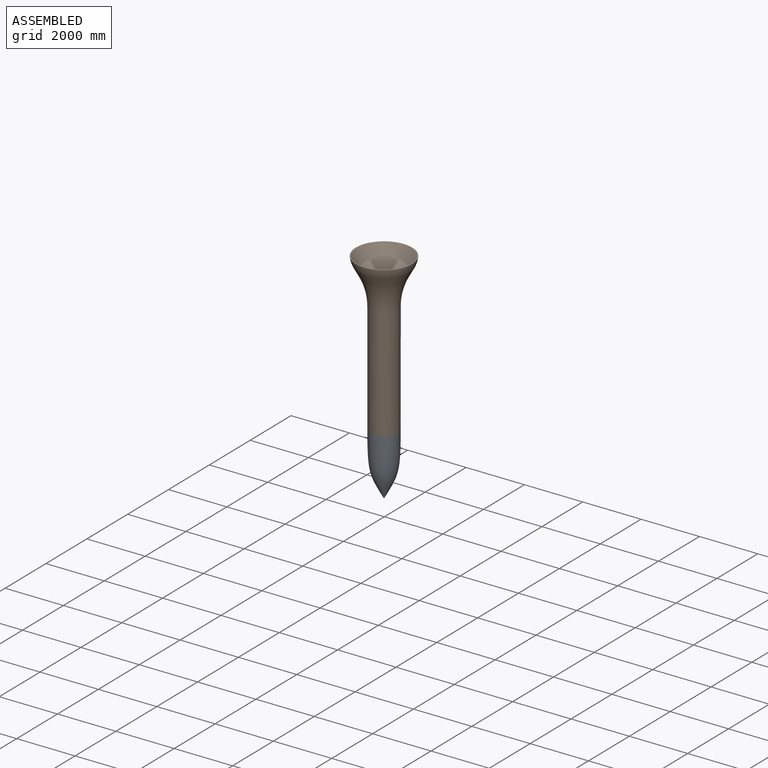
[diagram: assembled view]
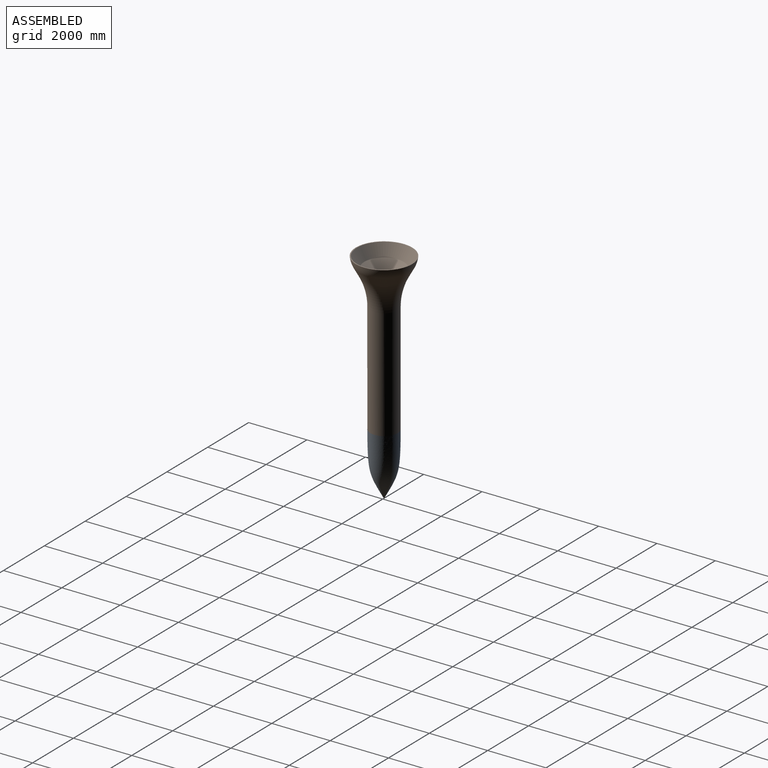
[diagram: assembled view, second angle]
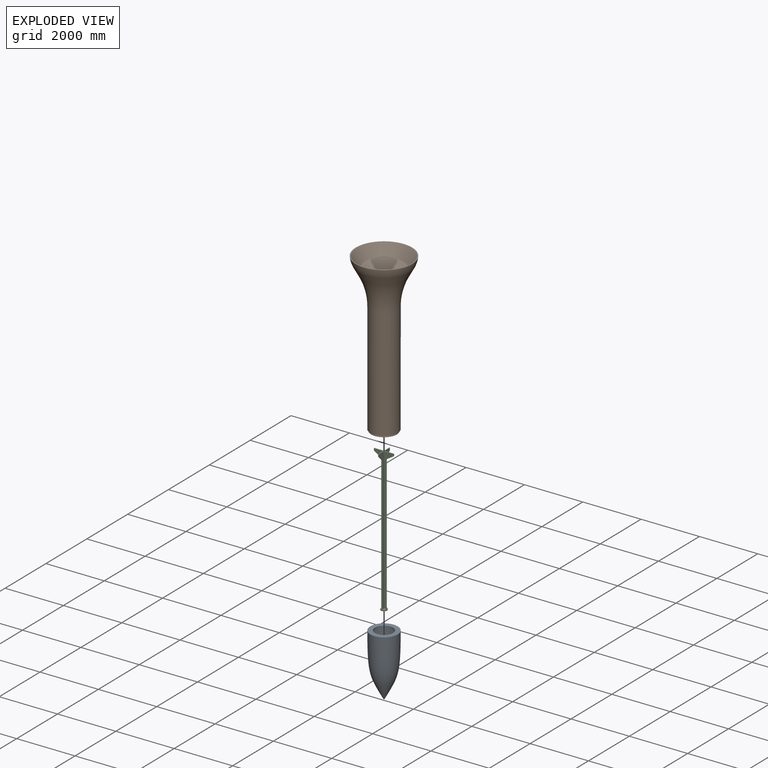
[diagram: exploded view]
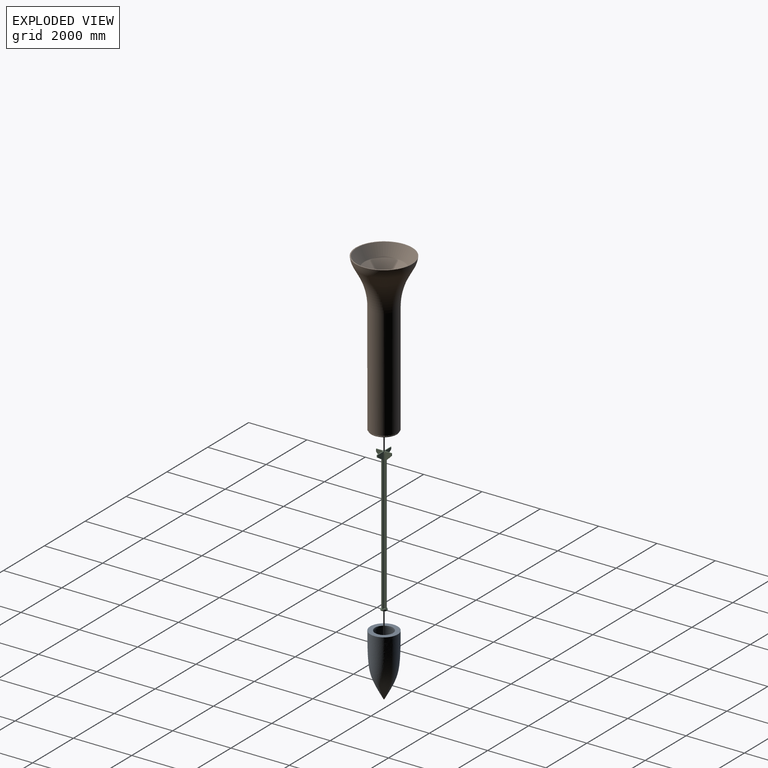
[diagram: exploded view, second angle]
ASSEMBLY  parts=3 mates=2
PART A: 17 faces, bbox 937.6x937.6x2147.9 mm
  f0: cone r=335.39mm half-angle=90deg, axis (0,0,-1), area 246113.3mm2, adj f1,f16
  f1: revolved ~1027.75x873.67mm, area 2758866.9mm2, adj f0,f2
  f2: plane 801.27x801.27mm, normal (0,0,1), area 470275.8mm2, adj f1,f3
  f3: cylinder r=103.99mm len=207.98mm, axis (0,0,-1), area 29760mm2, adj f2,f4
  f4: plane 309.58x309.58mm, normal (0,0,-1), area 41299.8mm2, adj f3,f5
  f5: cylinder r=154.79mm len=309.58mm, axis (0,0,-1), area 98814.2mm2, adj f4,f6
  f6: plane 309.58x309.58mm, normal (0,0,1), area 54272.5mm2, adj f5,f7
  f7: cylinder r=81.76mm len=163.52mm, axis (0,0,-1), area 8801.4mm2, adj f6,f8
  f8: plane 207.98x207.98mm, normal (0,0,-1), area 12972.7mm2, adj f7,f9
  f9: cylinder r=103.99mm len=207.98mm, axis (0,0,-1), area 25430.4mm2, adj f8,f10
  f10: plane 207.98x207.98mm, normal (0,0,1), area 33973.6mm2, adj f9
  f11: cone r=31.79mm half-angle=31.5deg, axis (0,0,1), area 6075.3mm2, adj f12
  f12: revolved ~2096.06x937.56mm, area 4950282.7mm2, adj f11,f13
  f13: cone r=468.78mm half-angle=90deg, axis (0,0,-1), area 388490.6mm2, adj f12,f14
  f14: cylinder r=309.99mm len=619.98mm, axis (0,0,-1), area 98943.6mm2, adj f13,f15
  f15: cone r=309.99mm half-angle=90deg, axis (0,0,-1), area 51498.6mm2, adj f14,f16
  f16: cylinder r=335.39mm len=670.78mm, axis (0,0,-1), area 53525.5mm2, adj f0,f15
PART B: 23 faces, bbox 2590.1x2590.1x5588.7 mm
  f0: cone r=309.99mm half-angle=90deg, axis (0,0,-1), area 388490.6mm2, adj f1,f20
  f1: cylinder r=468.78mm len=3803.4mm, axis (0,0,-1), area 11202602.9mm2, adj f0,f21
  f2: cone r=860.04mm half-angle=28.4deg, axis (0,0,1), area 1246689.6mm2, adj f21,f22
  f3: revolved ~1928.12x1928.12mm, area 1824221.9mm2, adj f4,f22
  f4: cone r=964.06mm half-angle=89.6deg, axis (0,0,-1), area 189395.7mm2, adj f3,f5
  f5: cone r=932.27mm half-angle=35deg, axis (0,0,1), area 2264770.8mm2, adj f4,f6
  f6: cone r=675.19mm half-angle=56deg, axis (0,0,1), area 1707870mm2, adj f5,f7
  f7: cylinder r=72.47mm len=144.94mm, axis (0,0,-1), area 32147.9mm2, adj f6,f8
  f8: cone r=72.47mm half-angle=33.3deg, axis (0,0,-1), area 341223.6mm2, adj f7,f9
  f9: cone r=254.73mm half-angle=3.7deg, axis (0,0,-1), area 2638928.2mm2, adj f8,f10
  f10: cone r=360.79mm half-angle=0.4deg, axis (0,0,-1), area 4685601.7mm2, adj f9,f11
  f11: cone r=360.79mm half-angle=6.1deg, axis (0,0,1), area 1457733.3mm2, adj f10,f12
  f12: cylinder r=284.59mm len=569.18mm, axis (0,0,-1), area 181678.5mm2, adj f11,f13
  f13: plane 721.58x721.58mm, normal (0,0,-1), area 154495.9mm2, adj f12,f14
  f14: cylinder r=360.79mm len=721.58mm, axis (0,0,-1), area 57579.1mm2, adj f13,f15
  f15: plane 873.98x873.98mm, normal (0,0,-1), area 190978.8mm2, adj f14,f16
  f16: cylinder r=436.99mm len=873.98mm, axis (0,0,-1), area 69739.9mm2, adj f15,f17
  f17: cone r=335.39mm half-angle=90deg, axis (0,0,-1), area 246531.1mm2, adj f16,f18
  f18: cylinder r=335.39mm len=670.78mm, axis (0,0,-1), area 53525.3mm2, adj f17,f19
  f19: plane 670.78x670.78mm, normal (0,0,1), area 51503mm2, adj f18,f20
  f20: cylinder r=309.99mm len=619.98mm, axis (0,0,-1), area 98943.6mm2, adj f0,f19
  f21: torus R=2561.41mm, axis (0,0,-1), area 3609780.1mm2, adj f1,f2
  f22: torus R=2682.26mm, axis (0,0,-1), area 303549.8mm2, adj f2,f3
PART C: 46 faces, bbox 678.3x533.4x5022.8 mm
  f0: plane 71.48x71.48mm, normal (0,0,1), area 3699.5mm2, adj f4,f12,f30
  f1: plane 71.48x71.48mm, normal (0,0,1), area 3699.5mm2, adj f12,f21,f28
  f2: plane 71.48x71.48mm, normal (0,0,1), area 3376.9mm2, adj f5,f6,f12,f36,f37
  f3: plane 25.4x0.95mm, normal (0,0,1), area 16.1mm2, adj f12,f41
  f4: plane 4866.78x326.44mm, normal (0,-1,0), area 391846.8mm2, adj f0,f16,f17,f18,f19,f20,f30
  f5: plane 4866.78x326.44mm, normal (0,1,0), area 330556.6mm2, adj f2,f6,f19,f23,f24,f25,f26,f35
  f6: plane 4866.78x254mm, normal (-1,0,0), area 256931mm2, adj f2,f5,f7,f19,f33,f34,f35,f37
  f7: plane 30.12x25.4mm, normal (0,0,-1), area 765mm2, adj f6,f8,f34,f41
  f8: plane 4866.78x254mm, normal (1,0,0), area 256931mm2, adj f7,f9,f19,f22,f33,f34,f38,f40
  f9: plane 71.48x71.48mm, normal (0,0,1), area 3376.9mm2, adj f8,f12,f22,f39,f40
  f10: cylinder r=103.99mm len=207.98mm, axis (0,0,-1), area 25430.4mm2, adj f11,f14
  f11: plane 207.98x207.98mm, normal (0,0,1), area 11203mm2, adj f10,f12
  f12: cylinder r=85.14mm len=170.27mm, axis (0,0,-1), area 9164.7mm2, adj f0,f1,f2,f3,f9,f11,f13,f15
  f13: plane 25.4x0.95mm, normal (0,0,1), area 16.1mm2, adj f12,f42
  f14: plane 207.98x207.98mm, normal (0,0,-1), area 33973.6mm2, adj f10
  f15: plane 12.7x0.95mm, normal (0,0,-1), area 4mm2, adj f12,f16,f22
  f16: plane 4629.92x25.4mm, normal (1,0,0), area 117599.9mm2, adj f4,f15,f17,f20,f22
  f17: plane 254x164.14mm, normal (0.54,0,-0.84), area 7681.4mm2, adj f4,f16,f18,f22
  f18: plane 72.73x25.4mm, normal (1,0,0), area 1847.3mm2, adj f4,f17,f19,f22
  f19: plane 678.27x533.4mm, normal (0,0,1), area 29624.6mm2, adj f4,f5,f6,f8,f18,f21,f22,f26
  f20: plane 12.7x0.95mm, normal (0,0,-1), area 4mm2, adj f4,f12,f16
  f21: plane 4866.78x326.44mm, normal (0,-1,0), area 391846.8mm2, adj f1,f19,f24,f25,f26,f27,f28
  f22: plane 4866.78x326.44mm, normal (0,1,0), area 330556.6mm2, adj f8,f9,f15,f16,f17,f18,f19,f38
  f23: plane 12.7x0.95mm, normal (0,0,-1), area 4mm2, adj f5,f12,f24
  f24: plane 4629.92x25.4mm, normal (-1,0,0), area 117599.9mm2, adj f5,f21,f23,f25,f27
  f25: plane 254x164.14mm, normal (-0.54,0,-0.84), area 7681.4mm2, adj f5,f21,f24,f26
  f26: plane 72.73x25.4mm, normal (-1,0,0), area 1847.3mm2, adj f5,f19,f21,f25
  f27: plane 12.7x0.95mm, normal (0,0,-1), area 4mm2, adj f12,f21,f24
  f28: plane 4866.78x254mm, normal (-1,0,0), area 379511.4mm2, adj f1,f19,f21,f29,f31,f32,f42
  f29: plane 30.12x25.4mm, normal (0,0,-1), area 765mm2, adj f28,f30,f32,f42
  f30: plane 4866.78x254mm, normal (1,0,0), area 379511.4mm2, adj f0,f4,f19,f29,f31,f32,f42
  f31: plane 84.46x25.4mm, normal (0,-1,0), area 2145.4mm2, adj f19,f28,f30,f32
  f32: plane 152.4x152.4mm, normal (0,-0.71,-0.71), area 5474.4mm2, adj f28,f29,f30,f31
  f33: plane 84.46x25.4mm, normal (0,1,0), area 2145.4mm2, adj f6,f8,f19,f34
  f34: plane 152.4x152.4mm, normal (0,0.71,-0.71), area 5474.4mm2, adj f6,f7,f8,f33
  f35: plane 25.4x12.7mm, normal (0,0,1), area 322.6mm2, adj f5,f6,f36,f37
  f36: plane 4826x25.4mm, normal (-1,0,0), area 122580.4mm2, adj f2,f5,f35,f37
  f37: plane 4826x12.7mm, normal (0,1,0), area 61290.2mm2, adj f2,f6,f35,f36
  f38: plane 25.4x12.7mm, normal (0,0,1), area 322.6mm2, adj f8,f22,f39,f40
  f39: plane 4826x25.4mm, normal (1,0,0), area 122580.4mm2, adj f9,f22,f38,f40
  f40: plane 4826x12.7mm, normal (0,1,0), area 61290.2mm2, adj f8,f9,f38,f39
  f41: plane 4629.92x25.4mm, normal (0,1,0), area 117599.9mm2, adj f3,f6,f7,f8
  f42: plane 4629.92x25.4mm, normal (0,-1,0), area 117599.9mm2, adj f13,f28,f29,f30
  f43: cylinder r=12.7mm len=88mm, axis (0,0,-1), area 7022.1mm2, adj f19,f45
  f44: plane 1.4x1.4mm, normal (0,0,1), area 1.5mm2, adj f45
  f45: cone r=0.7mm half-angle=45deg, axis (0,0,-1), area 714.4mm2, adj f43,f44
PLACE A t=(-2679.53,-174.19,1547.35)mm
PLACE B t=(-2679.53,-174.19,1547.35)mm
PLACE C t=(-2679.53,-174.19,1547.35)mm
MATE fastened B.f0 <-> A.f0  axis (0,0,-1) through (-2886.67,-174.19,2614.48)mm
MATE fastened C.f10 <-> A.f0  axis (0,0,-1) through (-2886.67,-174.19,1652.42)mm
